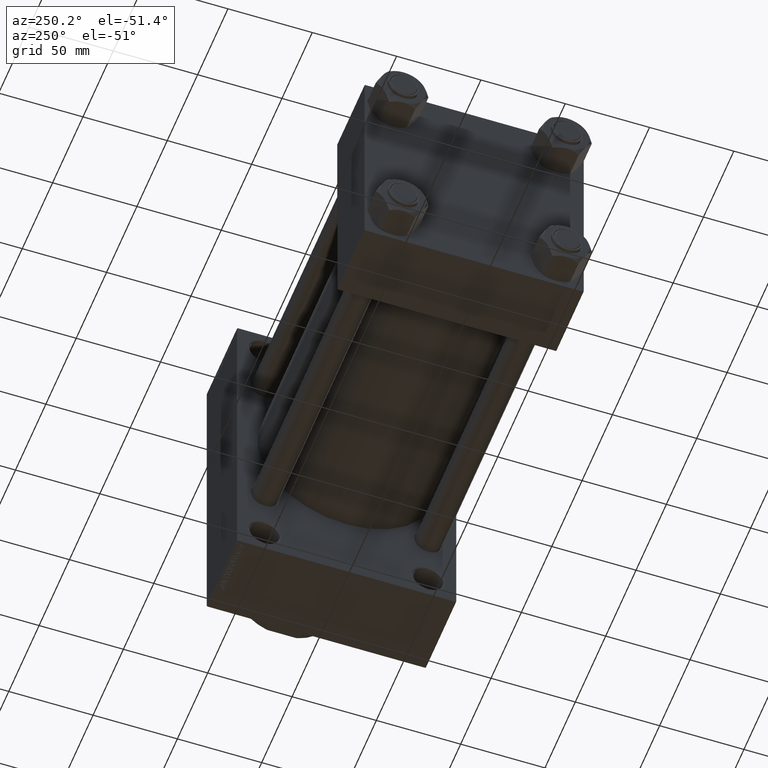
[diagram: clean part render]
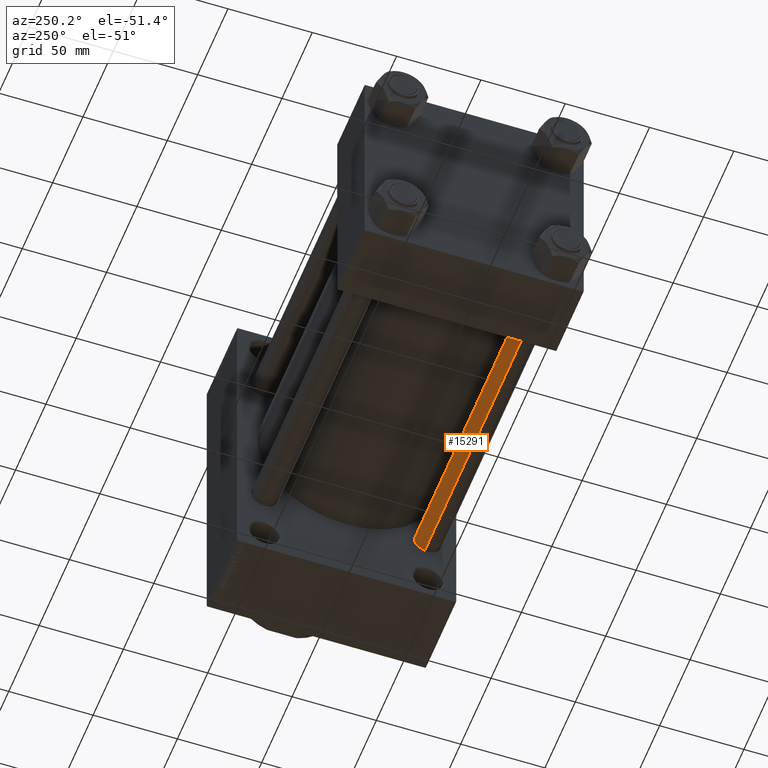
[diagram: same view with one face highlighted and labeled with its STEP entity id]
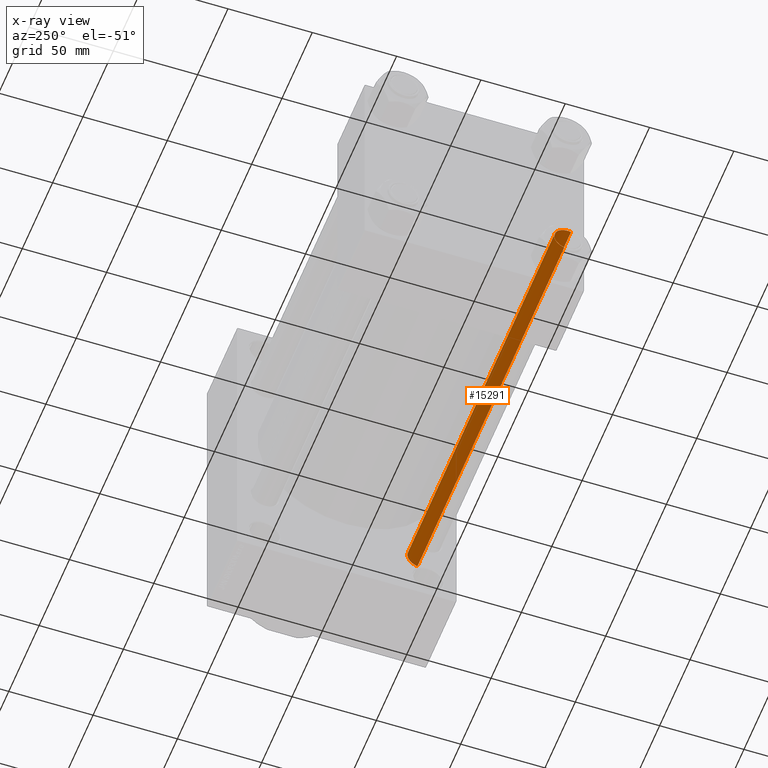
[diagram: x-ray of the same camera — body ghosted, the highlighted face saturated]
A machine part, auxiliary view. The second image highlights one B-rep face of the part: STEP entity #15291.
The next image is the same camera in x-ray: the body ghosted, the highlighted face saturated — about 0% of this face is hidden behind the body in this view.
In plain terms, the highlighted cylindrical surface (edge-blend (fillet) strip) has radius 8 mm, axis along (-1, 0, 0).
Its self-contained STEP definition (entity closure, byte-faithful):
#3249 = ORIENTED_EDGE ( 'NONE', *, *, #16995, .F. ) ;
#4738 = ORIENTED_EDGE ( 'NONE', *, *, #24929, .T. ) ;
#5540 = DIRECTION ( 'NONE',  ( 0.000000000000000000, 0.000000000000000000, -1.000000000000000000 ) ) ;
#5716 = CYLINDRICAL_SURFACE ( 'NONE', #18171, 8.000000000000000000 ) ;
#6123 = EDGE_CURVE ( 'NONE', #11558, #10812, #18520, .T. ) ;
#8624 = DIRECTION ( 'NONE',  ( -1.000000000000000000, 0.000000000000000000, 0.000000000000000000 ) ) ;
#10329 = VERTEX_POINT ( 'NONE', #45714 ) ;
#10812 = VERTEX_POINT ( 'NONE', #32086 ) ;
#11558 = VERTEX_POINT ( 'NONE', #18131 ) ;
#13197 = ORIENTED_EDGE ( 'NONE', *, *, #6123, .T. ) ;
#14770 = CARTESIAN_POINT ( 'NONE',  ( 8.000000000000000000, 9.797174393178825657E-16, 243.0000000000000000 ) ) ;
#15291 = ADVANCED_FACE ( 'NONE', ( #27455 ), #5716, .T. ) ;
#15641 = VERTEX_POINT ( 'NONE', #46201 ) ;
#16995 = EDGE_CURVE ( 'NONE', #10329, #15641, #33115, .T. ) ;
#18131 = CARTESIAN_POINT ( 'NONE',  ( -8.000000000000000000, 0.000000000000000000, 242.4999999999999147 ) ) ;
#18171 = AXIS2_PLACEMENT_3D ( 'NONE', #41926, #26321, #8624 ) ;
#18520 = LINE ( 'NONE', #37098, #39414 ) ;
#18632 = EDGE_LOOP ( 'NONE', ( #3249, #4738, #13197, #20670 ) ) ;
#20670 = ORIENTED_EDGE ( 'NONE', *, *, #45596, .T. ) ;
#21637 = CARTESIAN_POINT ( 'NONE',  ( 0.000000000000000000, 0.000000000000000000, 0.5000000000000004441 ) ) ;
#23562 = AXIS2_PLACEMENT_3D ( 'NONE', #21637, #36353, #36595 ) ;
#24929 = EDGE_CURVE ( 'NONE', #10329, #11558, #30706, .T. ) ;
#26321 = DIRECTION ( 'NONE',  ( -0.000000000000000000, -0.000000000000000000, -1.000000000000000000 ) ) ;
#27455 = FACE_OUTER_BOUND ( 'NONE', #18632, .T. ) ;
#28240 = CARTESIAN_POINT ( 'NONE',  ( 0.000000000000000000, 0.000000000000000000, 242.4999999999999147 ) ) ;
#28919 = VECTOR ( 'NONE', #39876, 1000.000000000000000 ) ;
#30706 = CIRCLE ( 'NONE', #46100, 8.000000000000000000 ) ;
#32086 = CARTESIAN_POINT ( 'NONE',  ( -8.000000000000000000, 0.000000000000000000, 0.5000000000000004441 ) ) ;
#33115 = LINE ( 'NONE', #14770, #28919 ) ;
#35468 = DIRECTION ( 'NONE',  ( 1.000000000000000000, 0.000000000000000000, 0.000000000000000000 ) ) ;
#36353 = DIRECTION ( 'NONE',  ( -0.000000000000000000, -0.000000000000000000, 1.000000000000000000 ) ) ;
#36595 = DIRECTION ( 'NONE',  ( 1.000000000000000000, 0.000000000000000000, 0.000000000000000000 ) ) ;
#37098 = CARTESIAN_POINT ( 'NONE',  ( -8.000000000000000000, 0.000000000000000000, 243.0000000000000000 ) ) ;
#39414 = VECTOR ( 'NONE', #47716, 1000.000000000000000 ) ;
#39876 = DIRECTION ( 'NONE',  ( -0.000000000000000000, -0.000000000000000000, -1.000000000000000000 ) ) ;
#41926 = CARTESIAN_POINT ( 'NONE',  ( 0.000000000000000000, 0.000000000000000000, 243.0000000000000000 ) ) ;
#44342 = CIRCLE ( 'NONE', #23562, 8.000000000000000000 ) ;
#45596 = EDGE_CURVE ( 'NONE', #10812, #15641, #44342, .T. ) ;
#45714 = CARTESIAN_POINT ( 'NONE',  ( 8.000000000000000000, 9.797174393178825657E-16, 242.4999999999999147 ) ) ;
#46100 = AXIS2_PLACEMENT_3D ( 'NONE', #28240, #5540, #35468 ) ;
#46201 = CARTESIAN_POINT ( 'NONE',  ( 8.000000000000000000, 9.797174393178825657E-16, 0.5000000000000004441 ) ) ;
#47716 = DIRECTION ( 'NONE',  ( -0.000000000000000000, -0.000000000000000000, -1.000000000000000000 ) ) ;